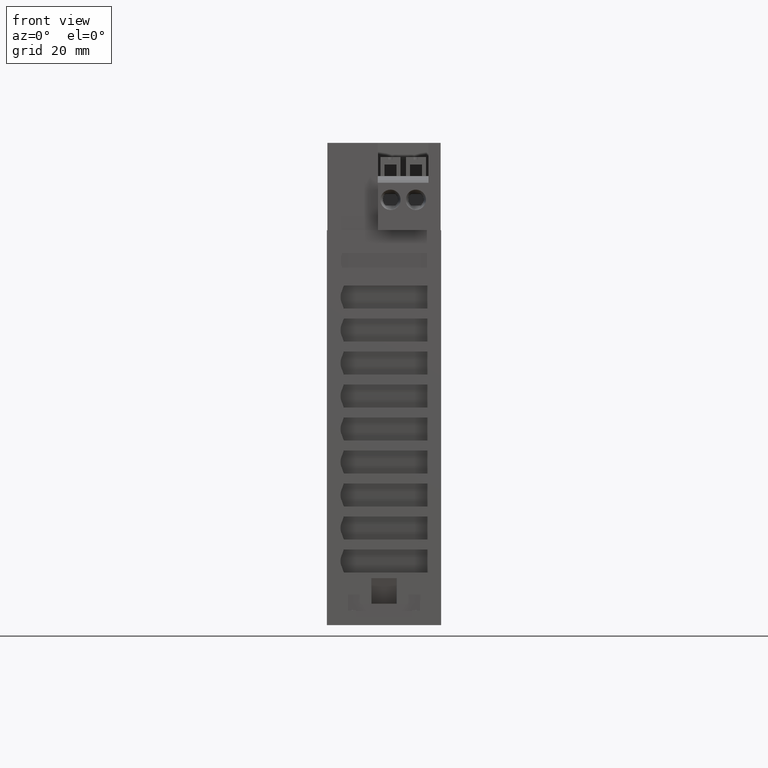
[diagram: clean part render]
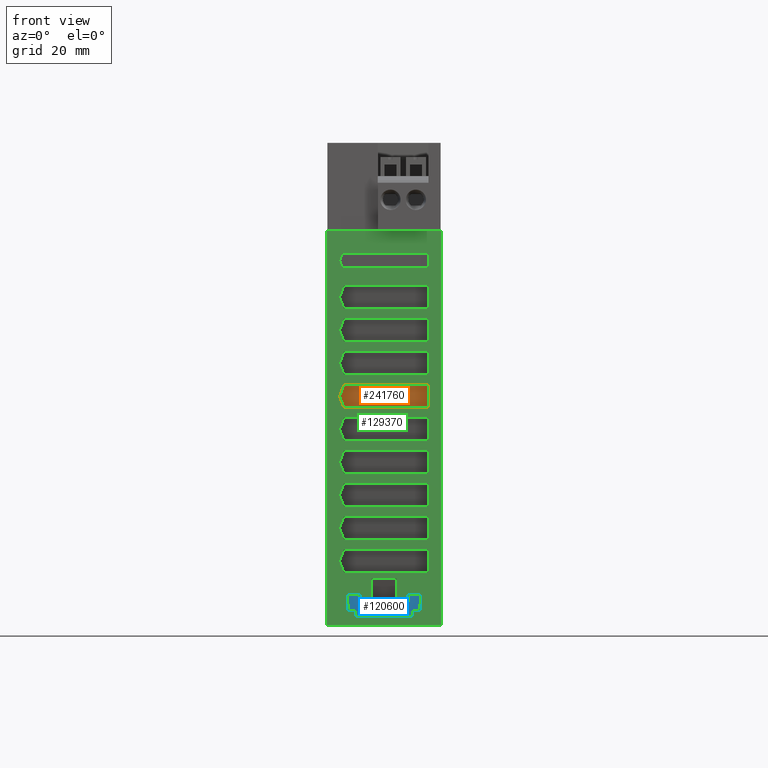
[diagram: same view with three faces highlighted in distinct colors, each labeled with its STEP entity id]
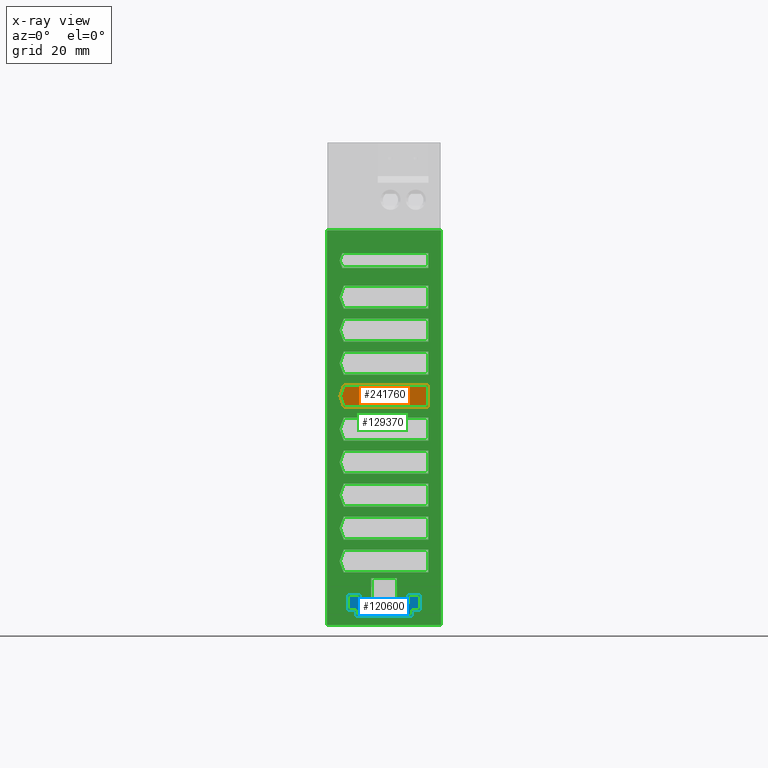
[diagram: x-ray of the same camera — body ghosted, the three highlighted faces saturated]
A machine part, front view with three faces highlighted in distinct colors.
The next image is the same camera in x-ray (body ghosted, the three faces saturated) — at least one of them is partly hidden behind the body in this view.
Their STEP definitions:

[orange] entity #241760 — the highlighted planar face has unit normal (0, 1, 0.0087).
#136350=CARTESIAN_POINT('',(12.08487880955,71.8,-47.6));
#136360=DIRECTION('',(-0.,0.00872653549837375,0.999961923064171));
#136370=DIRECTION('',(1.,0.,0.));
#136380=AXIS2_PLACEMENT_3D('',#136350,#136360,#136370);
#136390=PLANE('',#136380);
#240230=CARTESIAN_POINT('',(8.75000000000002,39.1,-47.3146314232422));
#240240=VERTEX_POINT('',#240230);
#240270=CARTESIAN_POINT('',(20.651826660506,71.8,-47.6));
#240280=DIRECTION('',(0.342008643580674,0.939661025496111,
-0.00820029753763322));
#240290=VECTOR('',#240280,1.);
#240300=LINE('',#240270,#240290);
#240310=CARTESIAN_POINT('',(7.93106697290096,36.85,-47.294995970713));
#240320=VERTEX_POINT('',#240310);
#240330=EDGE_CURVE('',#240320,#240240,#240300,.T.);
#240580=CARTESIAN_POINT('',(0.,36.85,-47.294995970713));
#240590=DIRECTION('',(1.,0.,0.));
#240600=VECTOR('',#240590,1.);
#240610=LINE('',#240580,#240600);
#240620=CARTESIAN_POINT('',(-8.75,36.85,-47.294995970713));
#240630=VERTEX_POINT('',#240620);
#240640=EDGE_CURVE('',#240630,#240320,#240610,.T.);
#240890=CARTESIAN_POINT('',(-8.75,71.8,-47.6));
#240900=DIRECTION('',(8.67361737988404E-19,-0.999961923064171,
0.00872653549837375));
#240910=VECTOR('',#240900,1.);
#240920=LINE('',#240890,#240910);
#240930=CARTESIAN_POINT('',(-8.75,41.35,-47.3342668757714));
#240940=VERTEX_POINT('',#240930);
#240950=EDGE_CURVE('',#240940,#240630,#240920,.T.);
#241200=CARTESIAN_POINT('',(0.,41.35,-47.3342668757714));
#241210=DIRECTION('',(-1.,0.,0.));
#241220=VECTOR('',#241210,1.);
#241230=LINE('',#241200,#241220);
#241240=CARTESIAN_POINT('',(7.931066972901,41.35,-47.3342668757714));
#241250=VERTEX_POINT('',#241240);
#241260=EDGE_CURVE('',#241250,#240940,#241230,.T.);
#241510=CARTESIAN_POINT('',(-3.15182666050598,71.8,-47.6));
#241520=DIRECTION('',(-0.342008643580674,0.939661025496111,
-0.00820029753763322));
#241530=VECTOR('',#241520,1.);
#241540=LINE('',#241510,#241530);
#241550=EDGE_CURVE('',#240240,#241250,#241540,.T.);
#241690=ORIENTED_EDGE('',*,*,#241550,.F.);
#241700=ORIENTED_EDGE('',*,*,#241260,.F.);
#241710=ORIENTED_EDGE('',*,*,#240950,.F.);
#241720=ORIENTED_EDGE('',*,*,#240640,.F.);
#241730=ORIENTED_EDGE('',*,*,#240330,.F.);
#241740=EDGE_LOOP('',(#241730,#241720,#241710,#241700,#241690));
#241750=FACE_OUTER_BOUND('',#241740,.T.);
#241760=ADVANCED_FACE('',(#241750),#136390,.F.);

[blue] entity #120600 — the highlighted planar face has unit normal (-0, -0.9998, -0.0175).
#23040=CARTESIAN_POINT('',(4.73126682362547,-0.00872487417561274,
-49.3159952598991));
#23050=VERTEX_POINT('',#23040);
#23100=CARTESIAN_POINT('',(4.73141911687101,-0.00872487417559853,
-49.3159952598991));
#23110=DIRECTION('',(1.,-3.7546042749575E-36,1.38777878078145E-16));
#23120=VECTOR('',#23110,1.);
#23130=LINE('',#23100,#23120);
#23140=CARTESIAN_POINT('',(7.15029856340739,-0.00872487417561274,
-49.3159952598991));
#23150=VERTEX_POINT('',#23140);
#23160=EDGE_CURVE('',#23050,#23150,#23130,.T.);
#117320=CARTESIAN_POINT('',(-5.551125818201,-3.09887382633173,
-49.2620565093013));
#117330=VERTEX_POINT('',#117320);
#117380=CARTESIAN_POINT('',(-7.095889298723,-3.12582956032901,
-49.2615859952142));
#117390=DIRECTION('',(0.999847741535795,0.0174470914793621,
-0.000304540114580614));
#117400=VECTOR('',#117390,1.);
#117410=LINE('',#117380,#117400);
#117420=CARTESIAN_POINT('',(-7.09588929872299,-3.12582956032902,
-49.2615859952142));
#117430=VERTEX_POINT('',#117420);
#117440=EDGE_CURVE('',#117430,#117330,#117410,.T.);
#117760=CARTESIAN_POINT('',(-7.095889298723,-3.12582956032901,
-49.2615859952142));
#117770=DIRECTION('',(-0.0174497491606798,0.999695459881888,
-0.017449749160679));
#117780=VECTOR('',#117770,1.);
#117790=LINE('',#117760,#117780);
#117800=CARTESIAN_POINT('',(-7.15029856340784,-0.00872487417561274,
-49.3159952598991));
#117810=VERTEX_POINT('',#117800);
#117820=EDGE_CURVE('',#117430,#117810,#117790,.T.);
#118170=CARTESIAN_POINT('',(-5.551125818201,-4.3,-49.241090773953));
#118180=VERTEX_POINT('',#118170);
#118230=CARTESIAN_POINT('',(-5.551125818201,-6.27517464766775,
-49.2066139722334));
#118240=DIRECTION('',(-2.42200793272305E-18,-0.999847695156391,
0.0174524064372798));
#118250=VECTOR('',#118240,1.);
#118260=LINE('',#118230,#118250);
#118270=EDGE_CURVE('',#117330,#118180,#118260,.T.);
#118930=CARTESIAN_POINT('',(5.551125818201,-3.09887382633173,
-49.2620565093013));
#118940=VERTEX_POINT('',#118930);
#118990=CARTESIAN_POINT('',(5.551125818201,-6.27517464766778,
-49.2066139722334));
#119000=DIRECTION('',(-2.42200793272305E-18,-0.999847695156391,
0.0174524064372798));
#119010=VECTOR('',#119000,1.);
#119020=LINE('',#118990,#119010);
#119030=CARTESIAN_POINT('',(5.551125818201,-4.3,-49.241090773953));
#119040=VERTEX_POINT('',#119030);
#119050=EDGE_CURVE('',#118940,#119040,#119020,.T.);
#119370=CARTESIAN_POINT('',(5.57905392208601,-4.29999999999998,
-49.241090773953));
#119380=DIRECTION('',(-1.,3.7546042749575E-36,-1.38777878078145E-16));
#119390=VECTOR('',#119380,1.);
#119400=LINE('',#119370,#119390);
#119410=EDGE_CURVE('',#119040,#118180,#119400,.T.);
#119690=CARTESIAN_POINT('',(7.09588929872254,-3.12582956032902,
-49.2615859952142));
#119700=VERTEX_POINT('',#119690);
#119750=CARTESIAN_POINT('',(5.61566392188001,-3.09999999999998,
-49.2620368518668));
#119760=DIRECTION('',(0.999847741535795,-0.0174470914793621,
0.000304540114580892));
#119770=VECTOR('',#119760,1.);
#119780=LINE('',#119750,#119770);
#119790=EDGE_CURVE('',#118940,#119700,#119780,.T.);
#119980=CARTESIAN_POINT('',(5.32907051820075E-15,-3.29996192378898,
-49.2585465035039));
#119990=DIRECTION('',(1.38756741535128E-16,-0.0174524064372798,
-0.999847695156391));
#120000=DIRECTION('',(1.,-2.46519032881566E-32,1.38777878078145E-16));
#120010=AXIS2_PLACEMENT_3D('',#119980,#119990,#120000);
#120020=PLANE('',#120010);
#120030=ORIENTED_EDGE('',*,*,#117820,.T.);
#120040=ORIENTED_EDGE('',*,*,#117440,.F.);
#120050=ORIENTED_EDGE('',*,*,#118270,.F.);
#120060=ORIENTED_EDGE('',*,*,#119410,.T.);
#120070=ORIENTED_EDGE('',*,*,#119050,.T.);
#120080=ORIENTED_EDGE('',*,*,#119790,.F.);
#120090=CARTESIAN_POINT('',(7.15000000000001,-0.0258295603290151,
-49.3156966964917));
#120100=DIRECTION('',(-0.0174497491606798,-0.999695459881888,
0.017449749160679));
#120110=VECTOR('',#120100,1.);
#120120=LINE('',#120090,#120110);
#120130=EDGE_CURVE('',#23150,#119700,#120120,.T.);
#120140=ORIENTED_EDGE('',*,*,#120130,.T.);
#120150=ORIENTED_EDGE('',*,*,#23160,.T.);
#120160=CARTESIAN_POINT('',(4.69610770020601,-2.02298970584798,
-49.2808361364796));
#120170=DIRECTION('',(0.0174497491606798,0.999695459881888,
-0.017449749160679));
#120180=VECTOR('',#120170,1.);
#120190=LINE('',#120160,#120180);
#120200=CARTESIAN_POINT('',(4.69982216475256,-1.81018817449701,
-49.2845506010261));
#120210=VERTEX_POINT('',#120200);
#120220=EDGE_CURVE('',#120210,#23050,#120190,.T.);
#120230=ORIENTED_EDGE('',*,*,#120220,.T.);
#120240=CARTESIAN_POINT('',(4.50346054737701,-1.81018817963009,
-49.2845506009366));
#120250=DIRECTION('',(-1.,-2.61410294843802E-8,4.56293228162332E-10));
#120260=VECTOR('',#120250,1.);
#120270=LINE('',#120240,#120260);
#120280=CARTESIAN_POINT('',(2.49247634116613,-1.81018823219929,
-49.284550600019));
#120290=VERTEX_POINT('',#120280);
#120300=EDGE_CURVE('',#120210,#120290,#120270,.T.);
#120310=ORIENTED_EDGE('',*,*,#120300,.F.);
#120320=CARTESIAN_POINT('',(0.,-1.81018823219931,-49.282261552474));
#120330=DIRECTION('',(-1.,-0.,-1.38777878078145E-16));
#120340=VECTOR('',#120330,1.);
#120350=LINE('',#120320,#120340);
#120360=CARTESIAN_POINT('',(-2.49247634115494,-1.81018823219932,
-49.2845431321881));
#120370=VERTEX_POINT('',#120360);
#120380=EDGE_CURVE('',#120290,#120370,#120350,.T.);
#120390=ORIENTED_EDGE('',*,*,#120380,.F.);
#120400=CARTESIAN_POINT('',(-4.69940621491001,-1.81018103087534,
-49.2845507257185));
#120410=VERTEX_POINT('',#120400);
#120420=EDGE_CURVE('',#120370,#120410,#120270,.T.);
#120430=ORIENTED_EDGE('',*,*,#120420,.F.);
#120440=CARTESIAN_POINT('',(-4.722841310573,-0.49142219370178,
-49.3075697468461));
#120450=DIRECTION('',(-0.0177650590606344,0.999689908077901,
-0.01744965225358));
#120460=VECTOR('',#120450,1.);
#120470=LINE('',#120440,#120460);
#120480=CARTESIAN_POINT('',(-4.73141911687123,-0.00872487417561274,
-49.3159952598991));
#120490=VERTEX_POINT('',#120480);
#120500=EDGE_CURVE('',#120410,#120490,#120470,.T.);
#120510=ORIENTED_EDGE('',*,*,#120500,.F.);
#120520=CARTESIAN_POINT('',(-6.169774623157,-0.00872487417559853,
-49.3159952598991));
#120530=DIRECTION('',(1.,-3.7546042749575E-36,1.38777878078145E-16));
#120540=VECTOR('',#120530,1.);
#120550=LINE('',#120520,#120540);
#120560=EDGE_CURVE('',#117810,#120490,#120550,.T.);
#120570=ORIENTED_EDGE('',*,*,#120560,.T.);
#120580=EDGE_LOOP('',(#120570,#120510,#120430,#120390,#120310,#120230,
#120150,#120140,#120080,#120070,#120060,#120050,#120040,#120030));
#120590=FACE_OUTER_BOUND('',#120580,.T.);
#120600=ADVANCED_FACE('',(#120590),#120020,.T.);

[green] entity #129370 — the highlighted planar face has unit normal (0, 1, 0).
#7800=CARTESIAN_POINT('',(-11.25,-6.,-49.5));
#7810=VERTEX_POINT('',#7800);
#7840=CARTESIAN_POINT('',(-11.25,71.8,-49.5));
#7850=DIRECTION('',(0.,1.,0.));
#7860=VECTOR('',#7850,1.);
#7870=LINE('',#7840,#7860);
#7880=CARTESIAN_POINT('',(-11.25,71.8,-49.5));
#7890=VERTEX_POINT('',#7880);
#7900=EDGE_CURVE('',#7810,#7890,#7870,.T.);
#21730=CARTESIAN_POINT('',(11.25,71.8,-49.5));
#21740=DIRECTION('',(0.,-1.,0.));
#21750=VECTOR('',#21740,1.);
#21760=LINE('',#21730,#21750);
#21770=CARTESIAN_POINT('',(11.25,71.8,-49.5));
#21780=VERTEX_POINT('',#21770);
#21790=CARTESIAN_POINT('',(11.25,-6.,-49.5));
#21800=VERTEX_POINT('',#21790);
#21810=EDGE_CURVE('',#21780,#21800,#21760,.T.);
#23060=CARTESIAN_POINT('',(4.73126682362547,-0.0119366888611552,-49.5));
#23070=VERTEX_POINT('',#23060);
#23220=CARTESIAN_POINT('',(7.15029856340739,-0.0119366888611694,-49.5));
#23230=VERTEX_POINT('',#23220);
#23260=CARTESIAN_POINT('',(0.,-0.0119366888611552,-49.5));
#23270=DIRECTION('',(1.,-2.42237687245377E-18,0.));
#23280=VECTOR('',#23270,1.);
#23290=LINE('',#23260,#23280);
#23300=EDGE_CURVE('',#23070,#23230,#23290,.T.);
#44310=CARTESIAN_POINT('',(-8.77512228449504,71.8,-49.5));
#44320=VERTEX_POINT('',#44310);
#50340=CARTESIAN_POINT('',(1.22487799997498,71.8,-49.5));
#50350=VERTEX_POINT('',#50340);
#90690=CARTESIAN_POINT('',(0.,71.8,-49.5));
#90700=DIRECTION('',(-1.,1.38777878078145E-16,0.));
#90710=VECTOR('',#90700,1.);
#90720=LINE('',#90690,#90710);
#90730=EDGE_CURVE('',#50350,#44320,#90720,.T.);
#104880=CARTESIAN_POINT('',(0.,-6.,-49.5));
#104890=DIRECTION('',(1.,0.,0.));
#104900=VECTOR('',#104890,1.);
#104910=LINE('',#104880,#104900);
#104920=EDGE_CURVE('',#7810,#21800,#104910,.T.);
#117340=CARTESIAN_POINT('',(-5.551125818201,-3.1030271454111,-49.5));
#117350=VERTEX_POINT('',#117340);
#117500=CARTESIAN_POINT('',(-7.095889298723,-3.12999109226233,-49.5));
#117510=VERTEX_POINT('',#117500);
#117540=CARTESIAN_POINT('',(0.,-3.0061318838297,-49.5));
#117550=DIRECTION('',(-0.999847695156391,-0.0174524064372798,0.));
#117560=VECTOR('',#117550,1.);
#117570=LINE('',#117540,#117560);
#117580=EDGE_CURVE('',#117350,#117510,#117570,.T.);
#117880=CARTESIAN_POINT('',(-7.15029856340784,-0.0119366888612262,-49.5)
);
#117890=VERTEX_POINT('',#117880);
#117920=CARTESIAN_POINT('',(-8.4033987872442,71.8,-49.5));
#117930=DIRECTION('',(-0.0174470922884254,0.999847787901078,0.));
#117940=VECTOR('',#117930,1.);
#117950=LINE('',#117920,#117940);
#117960=EDGE_CURVE('',#117510,#117890,#117950,.T.);
#118190=CARTESIAN_POINT('',(-5.551125818201,-4.30451927735113,-49.5));
#118200=VERTEX_POINT('',#118190);
#118300=CARTESIAN_POINT('',(-5.551125818201,71.8,-49.5));
#118310=DIRECTION('',(3.85185988877447E-34,1.,0.));
#118320=VECTOR('',#118310,1.);
#118330=LINE('',#118300,#118320);
#118340=EDGE_CURVE('',#118200,#117350,#118330,.T.);
#118950=CARTESIAN_POINT('',(5.551125818201,-3.1030271454111,-49.5));
#118960=VERTEX_POINT('',#118950);
#119110=CARTESIAN_POINT('',(5.551125818201,-4.30451927735113,-49.5));
#119120=VERTEX_POINT('',#119110);
#119150=CARTESIAN_POINT('',(5.551125818201,71.8,-49.5));
#119160=DIRECTION('',(-3.85185988877447E-34,-1.,0.));
#119170=VECTOR('',#119160,1.);
#119180=LINE('',#119150,#119170);
#119190=EDGE_CURVE('',#118960,#119120,#119180,.T.);
#119440=CARTESIAN_POINT('',(0.,-4.30451927735113,-49.5));
#119450=DIRECTION('',(-1.,2.42237687245377E-18,0.));
#119460=VECTOR('',#119450,1.);
#119470=LINE('',#119440,#119460);
#119480=EDGE_CURVE('',#119120,#118200,#119470,.T.);
#119710=CARTESIAN_POINT('',(7.09588929872254,-3.12999109226234,-49.5));
#119720=VERTEX_POINT('',#119710);
#119820=CARTESIAN_POINT('',(0.,-3.00613188382972,-49.5));
#119830=DIRECTION('',(-0.999847695156391,0.0174524064372799,0.));
#119840=VECTOR('',#119830,1.);
#119850=LINE('',#119820,#119840);
#119860=EDGE_CURVE('',#119720,#118960,#119850,.T.);
#120730=CARTESIAN_POINT('',(0.,-1.81394898064045,-49.5));
#120740=DIRECTION('',(1.,2.61489941123041E-8,0.));
#120750=VECTOR('',#120740,1.);
#120760=LINE('',#120730,#120750);
#120770=CARTESIAN_POINT('',(-4.69940621487003,-1.81394171419734,-49.5));
#120780=VERTEX_POINT('',#120770);
#120790=CARTESIAN_POINT('',(-2.5,-1.81394904601294,-49.5));
#120800=VERTEX_POINT('',#120790);
#120810=EDGE_CURVE('',#120780,#120800,#120760,.T.);
#121140=CARTESIAN_POINT('',(8.40339878724374,71.8,-49.5));
#121150=DIRECTION('',(-0.0174470922884254,-0.999847787901078,0.));
#121160=VECTOR('',#121150,1.);
#121170=LINE('',#121140,#121160);
#121180=EDGE_CURVE('',#23230,#119720,#121170,.T.);
#122240=CARTESIAN_POINT('',(-2.5,3.24999999999996,-49.5));
#122250=VERTEX_POINT('',#122240);
#122330=CARTESIAN_POINT('',(2.5,3.24999999999999,-49.5));
#122340=VERTEX_POINT('',#122330);
#122370=CARTESIAN_POINT('',(0.,3.24999999999999,-49.5));
#122380=DIRECTION('',(-1.,0.,0.));
#122390=VECTOR('',#122380,1.);
#122400=LINE('',#122370,#122390);
#122410=EDGE_CURVE('',#122340,#122250,#122400,.T.);
#122620=CARTESIAN_POINT('',(2.5,-1.81394891526796,-49.5));
#122630=VERTEX_POINT('',#122620);
#122660=CARTESIAN_POINT('',(2.5,71.8,-49.5));
#122670=DIRECTION('',(0.,1.,0.));
#122680=VECTOR('',#122670,1.);
#122690=LINE('',#122660,#122680);
#122700=EDGE_CURVE('',#122630,#122340,#122690,.T.);
#122910=CARTESIAN_POINT('',(-2.5,71.8,-49.5));
#122920=DIRECTION('',(0.,1.,0.));
#122930=VECTOR('',#122920,1.);
#122940=LINE('',#122910,#122930);
#122950=EDGE_CURVE('',#120800,#122250,#122940,.T.);
#124560=CARTESIAN_POINT('',(-11.25,-6.,-49.5));
#124570=DIRECTION('',(-0.,0.,1.));
#124580=DIRECTION('',(0.,-1.,0.));
#124590=AXIS2_PLACEMENT_3D('',#124560,#124570,#124580);
#124600=PLANE('',#124590);
#124610=CARTESIAN_POINT('',(-3.15182666050598,71.8,-49.5));
#124620=DIRECTION('',(0.342020143325699,-0.939692620785897,0.));
#124630=VECTOR('',#124620,1.);
#124640=LINE('',#124610,#124630);
#124650=CARTESIAN_POINT('',(7.931066972901,41.35,-49.5));
#124660=VERTEX_POINT('',#124650);
#124670=CARTESIAN_POINT('',(8.75000000000002,39.1,-49.5));
#124680=VERTEX_POINT('',#124670);
#124690=EDGE_CURVE('',#124660,#124680,#124640,.T.);
#124700=ORIENTED_EDGE('',*,*,#124690,.F.);
#124710=CARTESIAN_POINT('',(20.651826660506,71.8,-49.5));
#124720=DIRECTION('',(-0.342020143325699,-0.939692620785897,0.));
#124730=VECTOR('',#124720,1.);
#124740=LINE('',#124710,#124730);
#124750=CARTESIAN_POINT('',(7.93106697290096,36.85,-49.5));
#124760=VERTEX_POINT('',#124750);
#124770=EDGE_CURVE('',#124680,#124760,#124740,.T.);
#124780=ORIENTED_EDGE('',*,*,#124770,.F.);
#124790=CARTESIAN_POINT('',(0.,36.85,-49.5));
#124800=DIRECTION('',(-1.,0.,0.));
#124810=VECTOR('',#124800,1.);
#124820=LINE('',#124790,#124810);
#124830=CARTESIAN_POINT('',(-8.75,36.85,-49.5));
#124840=VERTEX_POINT('',#124830);
#124850=EDGE_CURVE('',#124760,#124840,#124820,.T.);
#124860=ORIENTED_EDGE('',*,*,#124850,.F.);
#124870=CARTESIAN_POINT('',(-8.75,71.8,-49.5));
#124880=DIRECTION('',(0.,1.,0.));
#124890=VECTOR('',#124880,1.);
#124900=LINE('',#124870,#124890);
#124910=CARTESIAN_POINT('',(-8.75,41.35,-49.5));
#124920=VERTEX_POINT('',#124910);
#124930=EDGE_CURVE('',#124840,#124920,#124900,.T.);
#124940=ORIENTED_EDGE('',*,*,#124930,.F.);
#124950=CARTESIAN_POINT('',(0.,41.35,-49.5));
#124960=DIRECTION('',(1.,0.,0.));
#124970=VECTOR('',#124960,1.);
#124980=LINE('',#124950,#124970);
#124990=EDGE_CURVE('',#124920,#124660,#124980,.T.);
#125000=ORIENTED_EDGE('',*,*,#124990,.F.);
#125010=EDGE_LOOP('',(#125000,#124940,#124860,#124780,#124700));
#125020=FACE_BOUND('',#125010,.T.);
#125030=CARTESIAN_POINT('',(0.,56.35,-49.5));
#125040=DIRECTION('',(-1.,0.,0.));
#125050=VECTOR('',#125040,1.);
#125060=LINE('',#125030,#125050);
#125070=CARTESIAN_POINT('',(7.931066972901,56.35,-49.5));
#125080=VERTEX_POINT('',#125070);
#125090=CARTESIAN_POINT('',(-8.75,56.35,-49.5));
#125100=VERTEX_POINT('',#125090);
#125110=EDGE_CURVE('',#125080,#125100,#125060,.T.);
#125120=ORIENTED_EDGE('',*,*,#125110,.F.);
#125130=CARTESIAN_POINT('',(-8.75,71.8,-49.5));
#125140=DIRECTION('',(0.,1.,0.));
#125150=VECTOR('',#125140,1.);
#125160=LINE('',#125130,#125150);
#125170=CARTESIAN_POINT('',(-8.75,60.85,-49.5));
#125180=VERTEX_POINT('',#125170);
#125190=EDGE_CURVE('',#125100,#125180,#125160,.T.);
#125200=ORIENTED_EDGE('',*,*,#125190,.F.);
#125210=CARTESIAN_POINT('',(0.,60.85,-49.5));
#125220=DIRECTION('',(1.,0.,0.));
#125230=VECTOR('',#125220,1.);
#125240=LINE('',#125210,#125230);
#125250=CARTESIAN_POINT('',(7.93106697290097,60.85,-49.5));
#125260=VERTEX_POINT('',#125250);
#125270=EDGE_CURVE('',#125180,#125260,#125240,.T.);
#125280=ORIENTED_EDGE('',*,*,#125270,.F.);
#125290=CARTESIAN_POINT('',(3.94559290768565,71.8,-49.5));
#125300=DIRECTION('',(0.342020143325699,-0.939692620785897,0.));
#125310=VECTOR('',#125300,1.);
#125320=LINE('',#125290,#125310);
#125330=CARTESIAN_POINT('',(8.75000000000003,58.6,-49.5));
#125340=VERTEX_POINT('',#125330);
#125350=EDGE_CURVE('',#125260,#125340,#125320,.T.);
#125360=ORIENTED_EDGE('',*,*,#125350,.F.);
#125370=CARTESIAN_POINT('',(13.5544070923144,71.8,-49.5));
#125380=DIRECTION('',(-0.342020143325699,-0.939692620785897,0.));
#125390=VECTOR('',#125380,1.);
#125400=LINE('',#125370,#125390);
#125410=EDGE_CURVE('',#125340,#125080,#125400,.T.);
#125420=ORIENTED_EDGE('',*,*,#125410,.F.);
#125430=EDGE_LOOP('',(#125420,#125360,#125280,#125200,#125120));
#125440=FACE_BOUND('',#125430,.T.);
#125450=CARTESIAN_POINT('',(0.,67.312560326904,-49.5));
#125460=DIRECTION('',(1.,0.,0.));
#125470=VECTOR('',#125460,1.);
#125480=LINE('',#125450,#125470);
#125490=CARTESIAN_POINT('',(-8.75,67.312560326904,-49.5));
#125500=VERTEX_POINT('',#125490);
#125510=CARTESIAN_POINT('',(8.217671575188,67.312560326904,-49.5));
#125520=VERTEX_POINT('',#125510);
#125530=EDGE_CURVE('',#125500,#125520,#125480,.T.);
#125540=ORIENTED_EDGE('',*,*,#125530,.F.);
#125550=CARTESIAN_POINT('',(6.58437710611563,71.8,-49.5));
#125560=DIRECTION('',(0.342020143325699,-0.939692620785897,0.));
#125570=VECTOR('',#125560,1.);
#125580=LINE('',#125550,#125570);
#125590=CARTESIAN_POINT('',(8.74999999999999,65.8499999999994,-49.5));
#125600=VERTEX_POINT('',#125590);
#125610=EDGE_CURVE('',#125520,#125600,#125580,.T.);
#125620=ORIENTED_EDGE('',*,*,#125610,.F.);
#125630=CARTESIAN_POINT('',(10.9156228938843,71.8,-49.5));
#125640=DIRECTION('',(-0.342020143325699,-0.939692620785897,0.));
#125650=VECTOR('',#125640,1.);
#125660=LINE('',#125630,#125650);
#125670=CARTESIAN_POINT('',(8.217591189144,64.387218814254,-49.5));
#125680=VERTEX_POINT('',#125670);
#125690=EDGE_CURVE('',#125600,#125680,#125660,.T.);
#125700=ORIENTED_EDGE('',*,*,#125690,.F.);
#125710=CARTESIAN_POINT('',(0.,64.387218814254,-49.5));
#125720=DIRECTION('',(-1.,0.,0.));
#125730=VECTOR('',#125720,1.);
#125740=LINE('',#125710,#125730);
#125750=CARTESIAN_POINT('',(-8.75,64.387218814254,-49.5));
#125760=VERTEX_POINT('',#125750);
#125770=EDGE_CURVE('',#125680,#125760,#125740,.T.);
#125780=ORIENTED_EDGE('',*,*,#125770,.F.);
#125790=CARTESIAN_POINT('',(-8.75,71.8,-49.5));
#125800=DIRECTION('',(0.,1.,0.));
#125810=VECTOR('',#125800,1.);
#125820=LINE('',#125790,#125810);
#125830=EDGE_CURVE('',#125760,#125500,#125820,.T.);
#125840=ORIENTED_EDGE('',*,*,#125830,.F.);
#125850=EDGE_LOOP('',(#125840,#125780,#125700,#125620,#125540));
#125860=FACE_BOUND('',#125850,.T.);
#125870=CARTESIAN_POINT('',(0.,49.85,-49.5));
#125880=DIRECTION('',(-1.,0.,0.));
#125890=VECTOR('',#125880,1.);
#125900=LINE('',#125870,#125890);
#125910=CARTESIAN_POINT('',(7.93106697290096,49.85,-49.5));
#125920=VERTEX_POINT('',#125910);
#125930=CARTESIAN_POINT('',(-8.75,49.85,-49.5));
#125940=VERTEX_POINT('',#125930);
#125950=EDGE_CURVE('',#125920,#125940,#125900,.T.);
#125960=ORIENTED_EDGE('',*,*,#125950,.F.);
#125970=CARTESIAN_POINT('',(-8.75,71.8,-49.5));
#125980=DIRECTION('',(0.,1.,0.));
#125990=VECTOR('',#125980,1.);
#126000=LINE('',#125970,#125990);
#126010=CARTESIAN_POINT('',(-8.75,54.35,-49.5));
#126020=VERTEX_POINT('',#126010);
#126030=EDGE_CURVE('',#125940,#126020,#126000,.T.);
#126040=ORIENTED_EDGE('',*,*,#126030,.F.);
#126050=CARTESIAN_POINT('',(0.,54.35,-49.5));
#126060=DIRECTION('',(1.,0.,0.));
#126070=VECTOR('',#126060,1.);
#126080=LINE('',#126050,#126070);
#126090=CARTESIAN_POINT('',(7.931066972901,54.35,-49.5));
#126100=VERTEX_POINT('',#126090);
#126110=EDGE_CURVE('',#126020,#126100,#126080,.T.);
#126120=ORIENTED_EDGE('',*,*,#126110,.F.);
#126130=CARTESIAN_POINT('',(1.57978638495513,71.8,-49.5));
#126140=DIRECTION('',(0.342020143325699,-0.939692620785897,0.));
#126150=VECTOR('',#126140,1.);
#126160=LINE('',#126130,#126150);
#126170=CARTESIAN_POINT('',(8.75000000000002,52.1,-49.5));
#126180=VERTEX_POINT('',#126170);
#126190=EDGE_CURVE('',#126100,#126180,#126160,.T.);
#126200=ORIENTED_EDGE('',*,*,#126190,.F.);
#126210=CARTESIAN_POINT('',(15.9202136150449,71.8,-49.5));
#126220=DIRECTION('',(-0.342020143325699,-0.939692620785897,0.));
#126230=VECTOR('',#126220,1.);
#126240=LINE('',#126210,#126230);
#126250=EDGE_CURVE('',#126180,#125920,#126240,.T.);
#126260=ORIENTED_EDGE('',*,*,#126250,.F.);
#126270=EDGE_LOOP('',(#126260,#126200,#126120,#126040,#125960));
#126280=FACE_BOUND('',#126270,.T.);
#126290=CARTESIAN_POINT('',(-14.9808592741588,71.8,-49.5));
#126300=DIRECTION('',(0.342020143325699,-0.939692620785897,0.));
#126310=VECTOR('',#126300,1.);
#126320=LINE('',#126290,#126310);
#126330=CARTESIAN_POINT('',(7.93106697290096,8.84999999999999,-49.5));
#126340=VERTEX_POINT('',#126330);
#126350=CARTESIAN_POINT('',(8.75,6.59999999999999,-49.5));
#126360=VERTEX_POINT('',#126350);
#126370=EDGE_CURVE('',#126340,#126360,#126320,.T.);
#126380=ORIENTED_EDGE('',*,*,#126370,.F.);
#126390=CARTESIAN_POINT('',(32.4808592741588,71.8,-49.5));
#126400=DIRECTION('',(-0.342020143325699,-0.939692620785897,0.));
#126410=VECTOR('',#126400,1.);
#126420=LINE('',#126390,#126410);
#126430=CARTESIAN_POINT('',(7.93106697290097,4.34999999999999,-49.5));
#126440=VERTEX_POINT('',#126430);
#126450=EDGE_CURVE('',#126360,#126440,#126420,.T.);
#126460=ORIENTED_EDGE('',*,*,#126450,.F.);
#126470=CARTESIAN_POINT('',(0.,4.34999999999999,-49.5));
#126480=DIRECTION('',(-1.,0.,0.));
#126490=VECTOR('',#126480,1.);
#126500=LINE('',#126470,#126490);
#126510=CARTESIAN_POINT('',(-8.75,4.34999999999999,-49.5));
#126520=VERTEX_POINT('',#126510);
#126530=EDGE_CURVE('',#126440,#126520,#126500,.T.);
#126540=ORIENTED_EDGE('',*,*,#126530,.F.);
#126550=CARTESIAN_POINT('',(-8.75,71.8,-49.5));
#126560=DIRECTION('',(0.,1.,0.));
#126570=VECTOR('',#126560,1.);
#126580=LINE('',#126550,#126570);
#126590=CARTESIAN_POINT('',(-8.75,8.84999999999999,-49.5));
#126600=VERTEX_POINT('',#126590);
#126610=EDGE_CURVE('',#126520,#126600,#126580,.T.);
#126620=ORIENTED_EDGE('',*,*,#126610,.F.);
#126630=CARTESIAN_POINT('',(0.,8.84999999999999,-49.5));
#126640=DIRECTION('',(1.,0.,0.));
#126650=VECTOR('',#126640,1.);
#126660=LINE('',#126630,#126650);
#126670=EDGE_CURVE('',#126600,#126340,#126660,.T.);
#126680=ORIENTED_EDGE('',*,*,#126670,.F.);
#126690=EDGE_LOOP('',(#126680,#126620,#126540,#126460,#126380));
#126700=FACE_BOUND('',#126690,.T.);
#126710=CARTESIAN_POINT('',(-12.6150527514282,71.8,-49.5));
#126720=DIRECTION('',(0.342020143325699,-0.939692620785897,0.));
#126730=VECTOR('',#126720,1.);
#126740=LINE('',#126710,#126730);
#126750=CARTESIAN_POINT('',(7.93106697290097,15.35,-49.5));
#126760=VERTEX_POINT('',#126750);
#126770=CARTESIAN_POINT('',(8.75000000000001,13.1,-49.5));
#126780=VERTEX_POINT('',#126770);
#126790=EDGE_CURVE('',#126760,#126780,#126740,.T.);
#126800=ORIENTED_EDGE('',*,*,#126790,.F.);
#126810=CARTESIAN_POINT('',(30.1150527514283,71.8,-49.5));
#126820=DIRECTION('',(-0.342020143325699,-0.939692620785897,0.));
#126830=VECTOR('',#126820,1.);
#126840=LINE('',#126810,#126830);
#126850=CARTESIAN_POINT('',(7.931066972901,10.85,-49.5));
#126860=VERTEX_POINT('',#126850);
#126870=EDGE_CURVE('',#126780,#126860,#126840,.T.);
#126880=ORIENTED_EDGE('',*,*,#126870,.F.);
#126890=CARTESIAN_POINT('',(0.,10.85,-49.5));
#126900=DIRECTION('',(-1.,0.,0.));
#126910=VECTOR('',#126900,1.);
#126920=LINE('',#126890,#126910);
#126930=CARTESIAN_POINT('',(-8.75,10.85,-49.5));
#126940=VERTEX_POINT('',#126930);
#126950=EDGE_CURVE('',#126860,#126940,#126920,.T.);
#126960=ORIENTED_EDGE('',*,*,#126950,.F.);
#126970=CARTESIAN_POINT('',(-8.75,71.8,-49.5));
#126980=DIRECTION('',(0.,1.,0.));
#126990=VECTOR('',#126980,1.);
#127000=LINE('',#126970,#126990);
#127010=CARTESIAN_POINT('',(-8.75,15.35,-49.5));
#127020=VERTEX_POINT('',#127010);
#127030=EDGE_CURVE('',#126940,#127020,#127000,.T.);
#127040=ORIENTED_EDGE('',*,*,#127030,.F.);
#127050=CARTESIAN_POINT('',(0.,15.35,-49.5));
#127060=DIRECTION('',(1.,0.,0.));
#127070=VECTOR('',#127060,1.);
#127080=LINE('',#127050,#127070);
#127090=EDGE_CURVE('',#127020,#126760,#127080,.T.);
#127100=ORIENTED_EDGE('',*,*,#127090,.F.);
#127110=EDGE_LOOP('',(#127100,#127040,#126960,#126880,#126800));
#127120=FACE_BOUND('',#127110,.T.);
#127130=CARTESIAN_POINT('',(-10.2492462286976,71.8,-49.5));
#127140=DIRECTION('',(0.342020143325699,-0.939692620785897,0.));
#127150=VECTOR('',#127140,1.);
#127160=LINE('',#127130,#127150);
#127170=CARTESIAN_POINT('',(7.931066972901,21.85,-49.5));
#127180=VERTEX_POINT('',#127170);
#127190=CARTESIAN_POINT('',(8.75000000000004,19.6,-49.5));
#127200=VERTEX_POINT('',#127190);
#127210=EDGE_CURVE('',#127180,#127200,#127160,.T.);
#127220=ORIENTED_EDGE('',*,*,#127210,.F.);
#127230=CARTESIAN_POINT('',(27.7492462286977,71.8,-49.5));
#127240=DIRECTION('',(-0.342020143325699,-0.939692620785897,0.));
#127250=VECTOR('',#127240,1.);
#127260=LINE('',#127230,#127250);
#127270=CARTESIAN_POINT('',(7.931066972901,17.35,-49.5));
#127280=VERTEX_POINT('',#127270);
#127290=EDGE_CURVE('',#127200,#127280,#127260,.T.);
#127300=ORIENTED_EDGE('',*,*,#127290,.F.);
#127310=CARTESIAN_POINT('',(0.,17.35,-49.5));
#127320=DIRECTION('',(-1.,0.,0.));
#127330=VECTOR('',#127320,1.);
#127340=LINE('',#127310,#127330);
#127350=CARTESIAN_POINT('',(-8.75,17.35,-49.5));
#127360=VERTEX_POINT('',#127350);
#127370=EDGE_CURVE('',#127280,#127360,#127340,.T.);
#127380=ORIENTED_EDGE('',*,*,#127370,.F.);
#127390=CARTESIAN_POINT('',(-8.75,71.8,-49.5));
#127400=DIRECTION('',(0.,1.,0.));
#127410=VECTOR('',#127400,1.);
#127420=LINE('',#127390,#127410);
#127430=CARTESIAN_POINT('',(-8.75,21.85,-49.5));
#127440=VERTEX_POINT('',#127430);
#127450=EDGE_CURVE('',#127360,#127440,#127420,.T.);
#127460=ORIENTED_EDGE('',*,*,#127450,.F.);
#127470=CARTESIAN_POINT('',(0.,21.85,-49.5));
#127480=DIRECTION('',(1.,0.,0.));
#127490=VECTOR('',#127480,1.);
#127500=LINE('',#127470,#127490);
#127510=EDGE_CURVE('',#127440,#127180,#127500,.T.);
#127520=ORIENTED_EDGE('',*,*,#127510,.F.);
#127530=EDGE_LOOP('',(#127520,#127460,#127380,#127300,#127220));
#127540=FACE_BOUND('',#127530,.T.);
#127550=CARTESIAN_POINT('',(0.,30.35,-49.5));
#127560=DIRECTION('',(-1.,0.,0.));
#127570=VECTOR('',#127560,1.);
#127580=LINE('',#127550,#127570);
#127590=CARTESIAN_POINT('',(7.93106697290096,30.35,-49.5));
#127600=VERTEX_POINT('',#127590);
#127610=CARTESIAN_POINT('',(-8.75,30.35,-49.5));
#127620=VERTEX_POINT('',#127610);
#127630=EDGE_CURVE('',#127600,#127620,#127580,.T.);
#127640=ORIENTED_EDGE('',*,*,#127630,.F.);
#127650=CARTESIAN_POINT('',(-8.75,71.8,-49.5));
#127660=DIRECTION('',(0.,1.,0.));
#127670=VECTOR('',#127660,1.);
#127680=LINE('',#127650,#127670);
#127690=CARTESIAN_POINT('',(-8.75,34.85,-49.5));
#127700=VERTEX_POINT('',#127690);
#127710=EDGE_CURVE('',#127620,#127700,#127680,.T.);
#127720=ORIENTED_EDGE('',*,*,#127710,.F.);
#127730=CARTESIAN_POINT('',(0.,34.85,-49.5));
#127740=DIRECTION('',(1.,0.,0.));
#127750=VECTOR('',#127740,1.);
#127760=LINE('',#127730,#127750);
#127770=CARTESIAN_POINT('',(7.931066972901,34.85,-49.5));
#127780=VERTEX_POINT('',#127770);
#127790=EDGE_CURVE('',#127700,#127780,#127760,.T.);
#127800=ORIENTED_EDGE('',*,*,#127790,.F.);
#127810=CARTESIAN_POINT('',(-5.51763318323653,71.8,-49.5));
#127820=DIRECTION('',(0.342020143325699,-0.939692620785897,0.));
#127830=VECTOR('',#127820,1.);
#127840=LINE('',#127810,#127830);
#127850=CARTESIAN_POINT('',(8.75000000000001,32.6,-49.5));
#127860=VERTEX_POINT('',#127850);
#127870=EDGE_CURVE('',#127780,#127860,#127840,.T.);
#127880=ORIENTED_EDGE('',*,*,#127870,.F.);
#127890=CARTESIAN_POINT('',(23.0176331832366,71.8,-49.5));
#127900=DIRECTION('',(-0.342020143325699,-0.939692620785897,0.));
#127910=VECTOR('',#127900,1.);
#127920=LINE('',#127890,#127910);
#127930=EDGE_CURVE('',#127860,#127600,#127920,.T.);
#127940=ORIENTED_EDGE('',*,*,#127930,.F.);
#127950=EDGE_LOOP('',(#127940,#127880,#127800,#127720,#127640));
#127960=FACE_BOUND('',#127950,.T.);
#127970=CARTESIAN_POINT('',(0.,23.85,-49.5));
#127980=DIRECTION('',(-1.,0.,0.));
#127990=VECTOR('',#127980,1.);
#128000=LINE('',#127970,#127990);
#128010=CARTESIAN_POINT('',(7.93106697290097,23.85,-49.5));
#128020=VERTEX_POINT('',#128010);
#128030=CARTESIAN_POINT('',(-8.75,23.85,-49.5));
#128040=VERTEX_POINT('',#128030);
#128050=EDGE_CURVE('',#128020,#128040,#128000,.T.);
#128060=ORIENTED_EDGE('',*,*,#128050,.F.);
#128070=CARTESIAN_POINT('',(-8.75,71.8,-49.5));
#128080=DIRECTION('',(0.,1.,0.));
#128090=VECTOR('',#128080,1.);
#128100=LINE('',#128070,#128090);
#128110=CARTESIAN_POINT('',(-8.75,28.35,-49.5));
#128120=VERTEX_POINT('',#128110);
#128130=EDGE_CURVE('',#128040,#128120,#128100,.T.);
#128140=ORIENTED_EDGE('',*,*,#128130,.F.);
#128150=CARTESIAN_POINT('',(0.,28.35,-49.5));
#128160=DIRECTION('',(1.,0.,0.));
#128170=VECTOR('',#128160,1.);
#128180=LINE('',#128150,#128170);
#128190=CARTESIAN_POINT('',(7.931066972901,28.35,-49.5));
#128200=VERTEX_POINT('',#128190);
#128210=EDGE_CURVE('',#128120,#128200,#128180,.T.);
#128220=ORIENTED_EDGE('',*,*,#128210,.F.);
#128230=CARTESIAN_POINT('',(-7.88343970596708,71.8,-49.5));
#128240=DIRECTION('',(0.342020143325699,-0.939692620785897,0.));
#128250=VECTOR('',#128240,1.);
#128260=LINE('',#128230,#128250);
#128270=CARTESIAN_POINT('',(8.75000000000001,26.1,-49.5));
#128280=VERTEX_POINT('',#128270);
#128290=EDGE_CURVE('',#128200,#128280,#128260,.T.);
#128300=ORIENTED_EDGE('',*,*,#128290,.F.);
#128310=CARTESIAN_POINT('',(25.3834397059671,71.8,-49.5));
#128320=DIRECTION('',(-0.342020143325699,-0.939692620785897,0.));
#128330=VECTOR('',#128320,1.);
#128340=LINE('',#128310,#128330);
#128350=EDGE_CURVE('',#128280,#128020,#128340,.T.);
#128360=ORIENTED_EDGE('',*,*,#128350,.F.);
#128370=EDGE_LOOP('',(#128360,#128300,#128220,#128140,#128060));
#128380=FACE_BOUND('',#128370,.T.);
#128390=ORIENTED_EDGE('',*,*,#122410,.T.);
#128400=ORIENTED_EDGE('',*,*,#122700,.T.);
#128410=CARTESIAN_POINT('',(0.,-1.81394898064045,-49.5));
#128420=DIRECTION('',(1.,2.61489941123041E-8,0.));
#128430=VECTOR('',#128420,1.);
#128440=LINE('',#128410,#128430);
#128450=CARTESIAN_POINT('',(4.69982216475256,-1.81394885774482,-49.5));
#128460=VERTEX_POINT('',#128450);
#128470=EDGE_CURVE('',#122630,#128460,#128440,.T.);
#128480=ORIENTED_EDGE('',*,*,#128470,.F.);
#128490=CARTESIAN_POINT('',(5.98436704746182,71.8,-49.5));
#128500=DIRECTION('',(0.0174470922884254,0.999847787901078,0.));
#128510=VECTOR('',#128500,1.);
#128520=LINE('',#128490,#128510);
#128530=EDGE_CURVE('',#128460,#23070,#128520,.T.);
#128540=ORIENTED_EDGE('',*,*,#128530,.F.);
#128550=ORIENTED_EDGE('',*,*,#23300,.F.);
#128560=ORIENTED_EDGE('',*,*,#121180,.F.);
#128570=ORIENTED_EDGE('',*,*,#119860,.F.);
#128580=ORIENTED_EDGE('',*,*,#119190,.F.);
#128590=ORIENTED_EDGE('',*,*,#119480,.F.);
#128600=ORIENTED_EDGE('',*,*,#118340,.F.);
#128610=ORIENTED_EDGE('',*,*,#117580,.F.);
#128620=ORIENTED_EDGE('',*,*,#117960,.F.);
#128630=CARTESIAN_POINT('',(0.,-0.0119366888611836,-49.5));
#128640=DIRECTION('',(1.,-2.42237687245377E-18,0.));
#128650=VECTOR('',#128640,1.);
#128660=LINE('',#128630,#128650);
#128670=CARTESIAN_POINT('',(-4.73141911687123,-0.0119366888611836,-49.5)
);
#128680=VERTEX_POINT('',#128670);
#128690=EDGE_CURVE('',#117890,#128680,#128660,.T.);
#128700=ORIENTED_EDGE('',*,*,#128690,.F.);
#128710=CARTESIAN_POINT('',(-6.00716943910352,71.8,-49.5));
#128720=DIRECTION('',(0.0177623542098106,-0.999842236941871,0.));
#128730=VECTOR('',#128720,1.);
#128740=LINE('',#128710,#128730);
#128750=EDGE_CURVE('',#128680,#120780,#128740,.T.);
#128760=ORIENTED_EDGE('',*,*,#128750,.F.);
#128770=ORIENTED_EDGE('',*,*,#120810,.F.);
#128780=ORIENTED_EDGE('',*,*,#122950,.F.);
#128790=EDGE_LOOP('',(#128780,#128770,#128760,#128700,#128620,#128610,
#128600,#128590,#128580,#128570,#128560,#128550,#128540,#128480,#128400,
#128390));
#128800=FACE_BOUND('',#128790,.T.);
#128810=CARTESIAN_POINT('',(0.,47.85,-49.5));
#128820=DIRECTION('',(1.,0.,0.));
#128830=VECTOR('',#128820,1.);
#128840=LINE('',#128810,#128830);
#128850=CARTESIAN_POINT('',(-8.75,47.85,-49.5));
#128860=VERTEX_POINT('',#128850);
#128870=CARTESIAN_POINT('',(7.931066972901,47.85,-49.5));
#128880=VERTEX_POINT('',#128870);
#128890=EDGE_CURVE('',#128860,#128880,#128840,.T.);
#128900=ORIENTED_EDGE('',*,*,#128890,.F.);
#128910=CARTESIAN_POINT('',(-0.786020137775425,71.8,-49.5));
#128920=DIRECTION('',(0.342020143325699,-0.939692620785897,0.));
#128930=VECTOR('',#128920,1.);
#128940=LINE('',#128910,#128930);
#128950=CARTESIAN_POINT('',(8.75000000000003,45.6,-49.5));
#128960=VERTEX_POINT('',#128950);
#128970=EDGE_CURVE('',#128880,#128960,#128940,.T.);
#128980=ORIENTED_EDGE('',*,*,#128970,.F.);
#128990=CARTESIAN_POINT('',(18.2860201377755,71.8,-49.5));
#129000=DIRECTION('',(-0.342020143325699,-0.939692620785897,0.));
#129010=VECTOR('',#129000,1.);
#129020=LINE('',#128990,#129010);
#129030=CARTESIAN_POINT('',(7.93106697290096,43.35,-49.5));
#129040=VERTEX_POINT('',#129030);
#129050=EDGE_CURVE('',#128960,#129040,#129020,.T.);
#129060=ORIENTED_EDGE('',*,*,#129050,.F.);
#129070=CARTESIAN_POINT('',(0.,43.35,-49.5));
#129080=DIRECTION('',(-1.,0.,0.));
#129090=VECTOR('',#129080,1.);
#129100=LINE('',#129070,#129090);
#129110=CARTESIAN_POINT('',(-8.75,43.35,-49.5));
#129120=VERTEX_POINT('',#129110);
#129130=EDGE_CURVE('',#129040,#129120,#129100,.T.);
#129140=ORIENTED_EDGE('',*,*,#129130,.F.);
#129150=CARTESIAN_POINT('',(-8.75,71.8,-49.5));
#129160=DIRECTION('',(0.,1.,0.));
#129170=VECTOR('',#129160,1.);
#129180=LINE('',#129150,#129170);
#129190=EDGE_CURVE('',#129120,#128860,#129180,.T.);
#129200=ORIENTED_EDGE('',*,*,#129190,.F.);
#129210=EDGE_LOOP('',(#129200,#129140,#129060,#128980,#128900));
#129220=FACE_BOUND('',#129210,.T.);
#129230=ORIENTED_EDGE('',*,*,#7900,.T.);
#129240=ORIENTED_EDGE('',*,*,#104920,.F.);
#129250=ORIENTED_EDGE('',*,*,#21810,.T.);
#129260=CARTESIAN_POINT('',(0.,71.8,-49.5));
#129270=DIRECTION('',(-1.,1.38777878078145E-16,0.));
#129280=VECTOR('',#129270,1.);
#129290=LINE('',#129260,#129280);
#129300=EDGE_CURVE('',#21780,#50350,#129290,.T.);
#129310=ORIENTED_EDGE('',*,*,#129300,.F.);
#129320=ORIENTED_EDGE('',*,*,#90730,.F.);
#129330=EDGE_CURVE('',#44320,#7890,#129290,.T.);
#129340=ORIENTED_EDGE('',*,*,#129330,.F.);
#129350=EDGE_LOOP('',(#129340,#129320,#129310,#129250,#129240,#129230));
#129360=FACE_OUTER_BOUND('',#129350,.T.);
#129370=ADVANCED_FACE('',(#125020,#125440,#125860,#126280,#126700,
#127120,#127540,#127960,#128380,#128800,#129220,#129360),#124600,.F.);